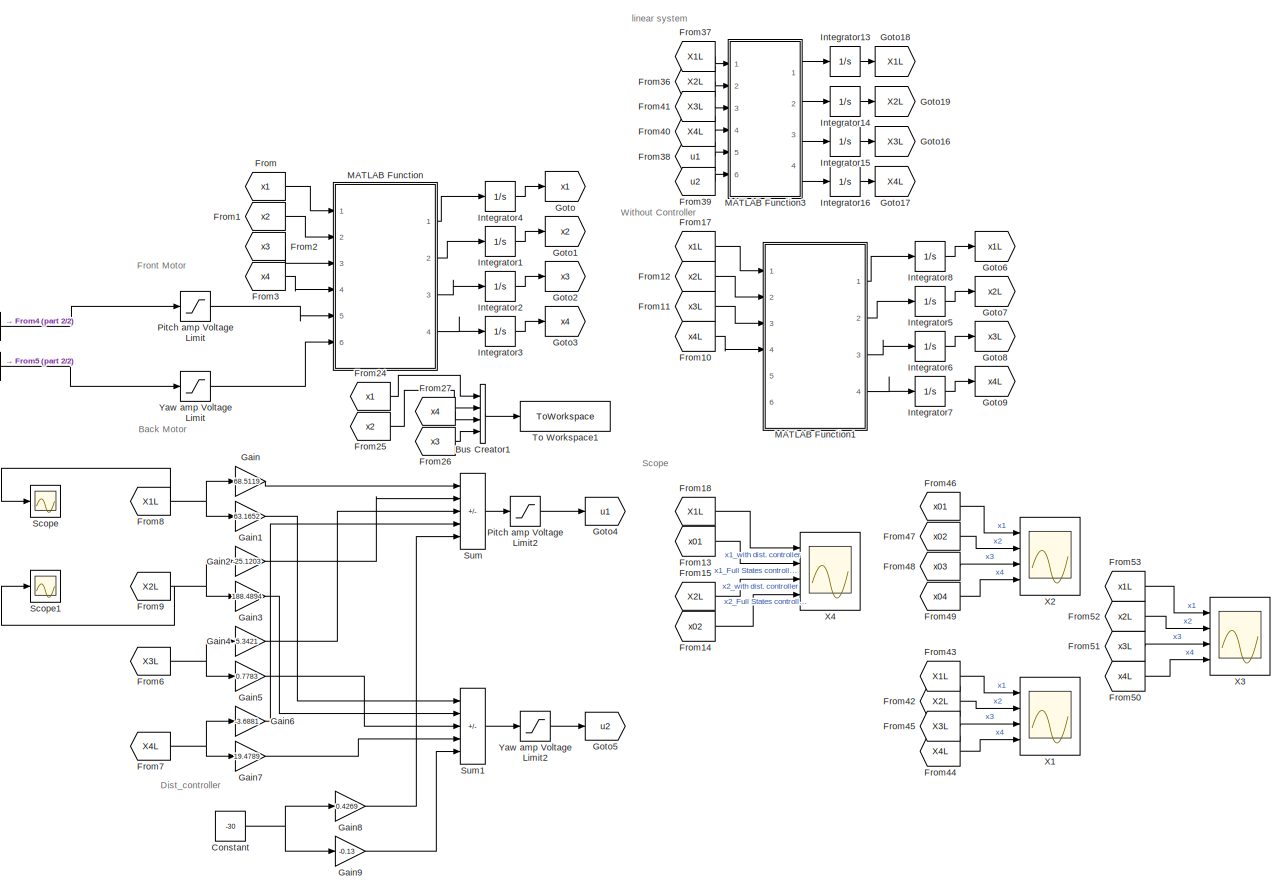
[diagram: root canvas - part 1/2, right side, full height]
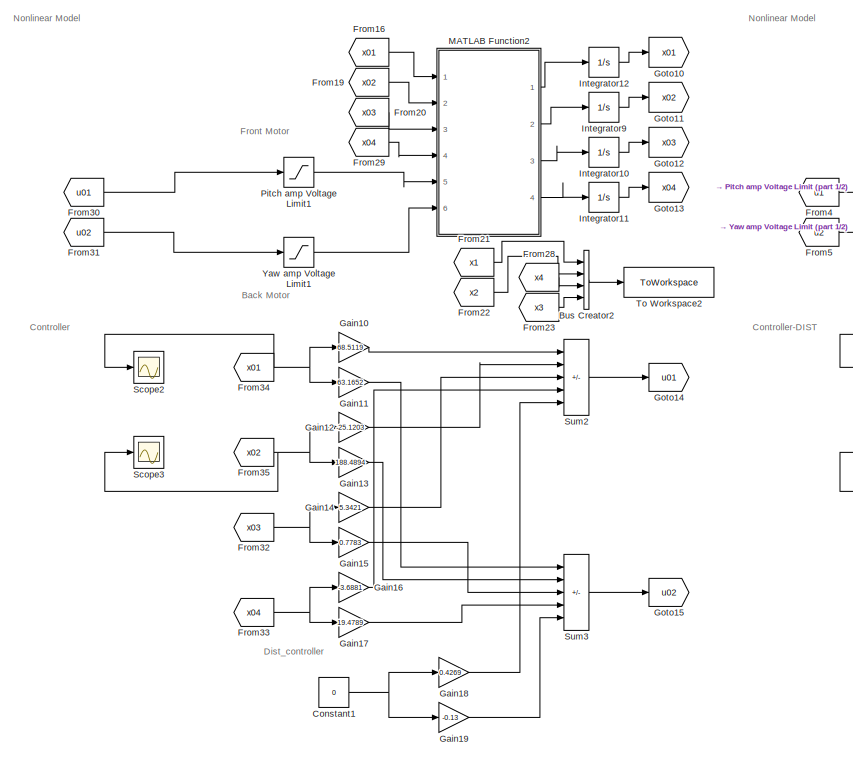
[diagram: root canvas - part 2/2, left side, full height]
MODEL slx_9ab05a108548
KIND model
CONFIG AbsTol = auto
CONFIG EnableMultiTasking = off
CONFIG FixedStep = auto
CONFIG InitFcn = % NOTE: If using VoltPAQ-X1, make sure both Gain switches are set to 3.\nK_AMP = 3;\n% Maximum Output Voltage (V): YAW limited to 15 V. PITCH limited to 24 V.\nVMAX_AMP_P = 24;\nVMAX_AMP_Y = 15;\n% Initial Angle of Pitch (rad)\ntheta_0 = -40.5*pi/180;\n\ng = 9.81;\n\n% Pitch and Yaw Motor Armature Resistance (Ohm)\nR_m_p = 0.83;\nR_m_y = 1.60;\n\n% Pitch and Yaw Motor Current-Torque Constant (N.m/A)\nK_t_p = 0.0...<+2432ch>
CONFIG MaxStep = 1e-3
CONFIG MinStep = auto
CONFIG RelTol = 1e-3
CONFIG SampleTimeConstraint = Unconstrained
CONFIG Solver = VariableStepAuto
CONFIG SolverName = VariableStepAuto
CONFIG StartTime = 0.0
CONFIG StopTime = 30
BLOCK [BusCreator] Bus Creator1
  DisplayOption = bar
  InheritFromInputs = on
  Inputs = 4
  Ports = [4, 1]
BLOCK [BusCreator] Bus Creator2
  DisplayOption = bar
  InheritFromInputs = on
  Inputs = 4
  Ports = [4, 1]
BLOCK [Constant] Constant
  Value = -30
BLOCK [Constant] Constant1
  Value = 0
BLOCK [From] From
  GotoTag = x1
BLOCK [From] From1
  GotoTag = x2
BLOCK [From] From10
  GotoTag = x4L
BLOCK [From] From11
  GotoTag = x3L
BLOCK [From] From12
  GotoTag = x2L
BLOCK [From] From13
  GotoTag = x01
BLOCK [From] From14
  GotoTag = x02
BLOCK [From] From15
  GotoTag = X2L
BLOCK [From] From16
  GotoTag = x01
BLOCK [From] From17
  GotoTag = x1L
BLOCK [From] From18
  GotoTag = X1L
BLOCK [From] From19
  GotoTag = x02
BLOCK [From] From2
  GotoTag = x3
BLOCK [From] From20
  GotoTag = x03
BLOCK [From] From21
  GotoTag = x1
BLOCK [From] From22
  GotoTag = x2
BLOCK [From] From23
  GotoTag = x3
BLOCK [From] From24
  GotoTag = x1
BLOCK [From] From25
  GotoTag = x2
BLOCK [From] From26
  GotoTag = x3
BLOCK [From] From27
  GotoTag = x4
BLOCK [From] From28
  GotoTag = x4
BLOCK [From] From29
  GotoTag = x04
BLOCK [From] From3
  GotoTag = x4
BLOCK [From] From30
  GotoTag = u01
BLOCK [From] From31
  GotoTag = u02
BLOCK [From] From32
  GotoTag = x03
BLOCK [From] From33
  GotoTag = x04
BLOCK [From] From34
  GotoTag = x01
BLOCK [From] From35
  GotoTag = x02
BLOCK [From] From36
  GotoTag = X2L
BLOCK [From] From37
  GotoTag = X1L
BLOCK [From] From38
  GotoTag = u1
BLOCK [From] From39
  GotoTag = u2
BLOCK [From] From4
  GotoTag = u1
BLOCK [From] From40
  GotoTag = X4L
BLOCK [From] From41
  GotoTag = X3L
BLOCK [From] From42
  GotoTag = X2L
BLOCK [From] From43
  GotoTag = X1L
BLOCK [From] From44
  GotoTag = X4L
BLOCK [From] From45
  GotoTag = X3L
BLOCK [From] From46
  GotoTag = x01
BLOCK [From] From47
  GotoTag = x02
BLOCK [From] From48
  GotoTag = x03
BLOCK [From] From49
  GotoTag = x04
BLOCK [From] From5
  GotoTag = u2
BLOCK [From] From50
  GotoTag = x4L
BLOCK [From] From51
  GotoTag = x3L
BLOCK [From] From52
  GotoTag = x2L
BLOCK [From] From53
  GotoTag = x1L
BLOCK [From] From6
  GotoTag = X3L
BLOCK [From] From7
  GotoTag = X4L
BLOCK [From] From8
  GotoTag = X1L
BLOCK [From] From9
  GotoTag = X2L
BLOCK [Gain] Gain
  Gain = 68.5119
BLOCK [Gain] Gain1
  Gain = 63.1652
BLOCK [Gain] Gain10
  Gain = 68.5119
BLOCK [Gain] Gain11
  Gain = 63.1652
BLOCK [Gain] Gain12
  Gain = -25.1203
BLOCK [Gain] Gain13
  Gain = 188.4894
BLOCK [Gain] Gain14
  Gain = 5.3421
BLOCK [Gain] Gain15
  Gain = 0.7783
BLOCK [Gain] Gain16
  Gain = -3.6881
BLOCK [Gain] Gain17
  Gain = 19.4789
BLOCK [Gain] Gain18
  Gain = 0.4269
BLOCK [Gain] Gain19
  Gain = -0.13
BLOCK [Gain] Gain2
  Gain = -25.1203
BLOCK [Gain] Gain3
  Gain = 188.4894
BLOCK [Gain] Gain4
  Gain = 5.3421
BLOCK [Gain] Gain5
  Gain = 0.7783
BLOCK [Gain] Gain6
  Gain = -3.6881
BLOCK [Gain] Gain7
  Gain = 19.4789
BLOCK [Gain] Gain8
  Gain = 0.4269
BLOCK [Gain] Gain9
  Gain = -0.13
BLOCK [Goto] Goto
  GotoTag = x1
BLOCK [Goto] Goto1
  GotoTag = x2
BLOCK [Goto] Goto10
  GotoTag = x01
BLOCK [Goto] Goto11
  GotoTag = x02
BLOCK [Goto] Goto12
  GotoTag = x03
BLOCK [Goto] Goto13
  GotoTag = x04
BLOCK [Goto] Goto14
  GotoTag = u01
BLOCK [Goto] Goto15
  GotoTag = u02
BLOCK [Goto] Goto16
  GotoTag = X3L
BLOCK [Goto] Goto17
  GotoTag = X4L
BLOCK [Goto] Goto18
  GotoTag = X1L
BLOCK [Goto] Goto19
  GotoTag = X2L
BLOCK [Goto] Goto2
  GotoTag = x3
BLOCK [Goto] Goto3
  GotoTag = x4
BLOCK [Goto] Goto4
  GotoTag = u1
BLOCK [Goto] Goto5
  GotoTag = u2
BLOCK [Goto] Goto6
  GotoTag = x1L
BLOCK [Goto] Goto7
  GotoTag = x2L
BLOCK [Goto] Goto8
  GotoTag = x3L
BLOCK [Goto] Goto9
  GotoTag = x4L
BLOCK [Integrator] Integrator1
  Ports = [1, 1]
BLOCK [Integrator] Integrator10
  InitialCondition = 5
  Ports = [1, 1]
BLOCK [Integrator] Integrator11
  Ports = [1, 1]
BLOCK [Integrator] Integrator12
  LowerSaturationLimit = -40.5*pi/180
  Ports = [1, 1]
  UpperSaturationLimit = 40.5*pi/180
BLOCK [Integrator] Integrator13
  LowerSaturationLimit = -40.5*pi/180
  Ports = [1, 1]
  UpperSaturationLimit = 40.5*pi/180
BLOCK [Integrator] Integrator14
  Ports = [1, 1]
BLOCK [Integrator] Integrator15
  InitialCondition = 5
  Ports = [1, 1]
BLOCK [Integrator] Integrator16
  Ports = [1, 1]
BLOCK [Integrator] Integrator2
  Ports = [1, 1]
BLOCK [Integrator] Integrator3
  Ports = [1, 1]
BLOCK [Integrator] Integrator4
  LowerSaturationLimit = -40.5*pi/180
  Ports = [1, 1]
  UpperSaturationLimit = 40.5*pi/180
BLOCK [Integrator] Integrator5
  Ports = [1, 1]
BLOCK [Integrator] Integrator6
  InitialCondition = 5
  Ports = [1, 1]
BLOCK [Integrator] Integrator7
  Ports = [1, 1]
BLOCK [Integrator] Integrator8
  LowerSaturationLimit = -40.5*pi/180
  Ports = [1, 1]
  UpperSaturationLimit = 40.5*pi/180
BLOCK [Integrator] Integrator9
  Ports = [1, 1]
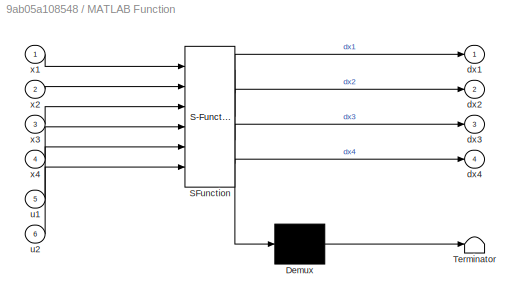
BLOCK [SubSystem] MATLAB Function
  ErrorFcn = Stateflow.Translate.translate
  PermitHierarchicalResolution = ExplicitOnly
  Ports = [6, 4]
  RequestExecContextInheritance = off
  SFBlockType = MATLAB Function
  TreatAsAtomicUnit = on
BLOCK [Demux] MATLAB Function/ Demux 
  Outputs = 1
  Ports = [1, 1]
BLOCK [S-Function] MATLAB Function/ SFunction 
  EnableBusSupport = on
  FunctionName = sf_sfun
  PortCounts = [6 5]
  Ports = [6, 5]
  SFcnIsStateOwnerBlock = off
  SFunctionDeploymentMode = off
  Tag = Stateflow S-Function controller_dist_def_controller 18
BLOCK [Terminator] MATLAB Function/ Terminator 
BLOCK [Outport] MATLAB Function/dx1
BLOCK [Outport] MATLAB Function/dx2
  Port = 2
BLOCK [Outport] MATLAB Function/dx3
  Port = 3
BLOCK [Outport] MATLAB Function/dx4
  Port = 4
BLOCK [Inport] MATLAB Function/u1
  Port = 5
BLOCK [Inport] MATLAB Function/u2
  Port = 6
BLOCK [Inport] MATLAB Function/x1
BLOCK [Inport] MATLAB Function/x2
  Port = 2
BLOCK [Inport] MATLAB Function/x3
  Port = 3
BLOCK [Inport] MATLAB Function/x4
  Port = 4
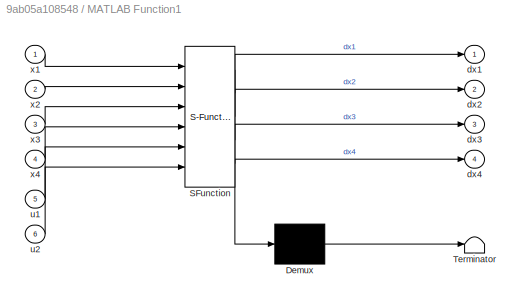
BLOCK [SubSystem] MATLAB Function1
  ErrorFcn = Stateflow.Translate.translate
  PermitHierarchicalResolution = ExplicitOnly
  Ports = [6, 4]
  RequestExecContextInheritance = off
  SFBlockType = MATLAB Function
  TreatAsAtomicUnit = on
BLOCK [Demux] MATLAB Function1/ Demux 
  Outputs = 1
  Ports = [1, 1]
BLOCK [S-Function] MATLAB Function1/ SFunction 
  EnableBusSupport = on
  FunctionName = sf_sfun
  PortCounts = [6 5]
  Ports = [6, 5]
  SFcnIsStateOwnerBlock = off
  SFunctionDeploymentMode = off
  Tag = Stateflow S-Function controller_dist_def_controller 1
BLOCK [Terminator] MATLAB Function1/ Terminator 
BLOCK [Outport] MATLAB Function1/dx1
BLOCK [Outport] MATLAB Function1/dx2
  Port = 2
BLOCK [Outport] MATLAB Function1/dx3
  Port = 3
BLOCK [Outport] MATLAB Function1/dx4
  Port = 4
BLOCK [Inport] MATLAB Function1/u1
  Port = 5
BLOCK [Inport] MATLAB Function1/u2
  Port = 6
BLOCK [Inport] MATLAB Function1/x1
BLOCK [Inport] MATLAB Function1/x2
  Port = 2
BLOCK [Inport] MATLAB Function1/x3
  Port = 3
BLOCK [Inport] MATLAB Function1/x4
  Port = 4
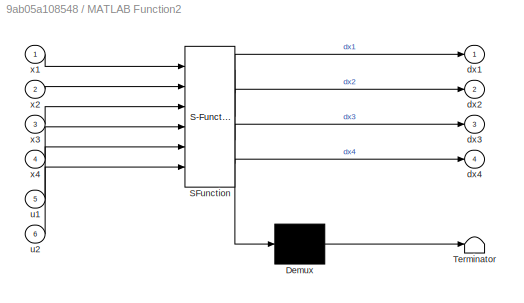
BLOCK [SubSystem] MATLAB Function2
  ErrorFcn = Stateflow.Translate.translate
  PermitHierarchicalResolution = ExplicitOnly
  Ports = [6, 4]
  RequestExecContextInheritance = off
  SFBlockType = MATLAB Function
  TreatAsAtomicUnit = on
BLOCK [Demux] MATLAB Function2/ Demux 
  Outputs = 1
  Ports = [1, 1]
BLOCK [S-Function] MATLAB Function2/ SFunction 
  EnableBusSupport = on
  FunctionName = sf_sfun
  PortCounts = [6 5]
  Ports = [6, 5]
  SFcnIsStateOwnerBlock = off
  SFunctionDeploymentMode = off
  Tag = Stateflow S-Function controller_dist_def_controller 2
BLOCK [Terminator] MATLAB Function2/ Terminator 
BLOCK [Outport] MATLAB Function2/dx1
BLOCK [Outport] MATLAB Function2/dx2
  Port = 2
BLOCK [Outport] MATLAB Function2/dx3
  Port = 3
BLOCK [Outport] MATLAB Function2/dx4
  Port = 4
BLOCK [Inport] MATLAB Function2/u1
  Port = 5
BLOCK [Inport] MATLAB Function2/u2
  Port = 6
BLOCK [Inport] MATLAB Function2/x1
BLOCK [Inport] MATLAB Function2/x2
  Port = 2
BLOCK [Inport] MATLAB Function2/x3
  Port = 3
BLOCK [Inport] MATLAB Function2/x4
  Port = 4
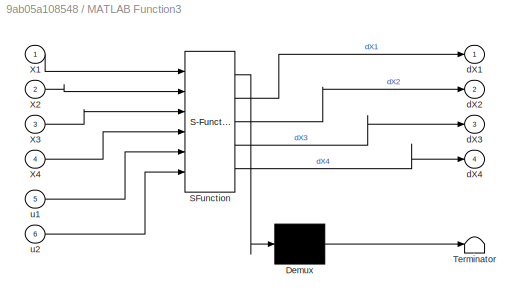
BLOCK [SubSystem] MATLAB Function3
  ErrorFcn = Stateflow.Translate.translate
  PermitHierarchicalResolution = ExplicitOnly
  Ports = [6, 4]
  RequestExecContextInheritance = off
  SFBlockType = MATLAB Function
  TreatAsAtomicUnit = on
BLOCK [Demux] MATLAB Function3/ Demux 
  Outputs = 1
  Ports = [1, 1]
BLOCK [S-Function] MATLAB Function3/ SFunction 
  EnableBusSupport = on
  FunctionName = sf_sfun
  PortCounts = [6 5]
  Ports = [6, 5]
  SFcnIsStateOwnerBlock = off
  SFunctionDeploymentMode = off
  Tag = Stateflow S-Function controller_dist_def_controller 3
BLOCK [Terminator] MATLAB Function3/ Terminator 
BLOCK [Inport] MATLAB Function3/X1
BLOCK [Inport] MATLAB Function3/X2
  Port = 2
BLOCK [Inport] MATLAB Function3/X3
  Port = 3
BLOCK [Inport] MATLAB Function3/X4
  Port = 4
BLOCK [Outport] MATLAB Function3/dX1
BLOCK [Outport] MATLAB Function3/dX2
  Port = 2
BLOCK [Outport] MATLAB Function3/dX3
  Port = 3
BLOCK [Outport] MATLAB Function3/dX4
  Port = 4
BLOCK [Inport] MATLAB Function3/u1
  Port = 5
BLOCK [Inport] MATLAB Function3/u2
  Port = 6
BLOCK [Saturate] Pitch amp Voltage Limit
  LowerLimit = - VMAX_AMP_P
  UpperLimit = VMAX_AMP_P
BLOCK [Saturate] Pitch amp Voltage Limit1
  LowerLimit = - VMAX_AMP_P
  UpperLimit = VMAX_AMP_P
BLOCK [Saturate] Pitch amp Voltage Limit2
  LowerLimit = - VMAX_AMP_P
  UpperLimit = VMAX_AMP_P
BLOCK [Scope] Scope
  Floating = off
  NumInputPorts = 1
  Ports = [1]
  ScopeSpecificationString = Simulink.scopes.TimeScopeBlockCfg('CurrentConfiguration', extmgr.ConfigurationSet(extmgr.Configuration('Core','General UI',true),extmgr.Configuration('Core','Source UI',true),extmgr.Configuration('Sources','WiredSimulink',true),extmgr.Configuration('Visuals','Time Domain',true,'SerializedDisplays',{struct('MinYLimReal','-0.51971','MaxYLimReal','0.05775','YLabelReal','','MinYLimMag','0.00000','MaxY...<+1331ch>
BLOCK [Scope] Scope1
  Floating = off
  NumInputPorts = 1
  Ports = [1]
  ScopeSpecificationString = Simulink.scopes.TimeScopeBlockCfg('CurrentConfiguration', extmgr.ConfigurationSet(extmgr.Configuration('Core','General UI',true),extmgr.Configuration('Core','Source UI',true),extmgr.Configuration('Sources','WiredSimulink',true,'DataLoggingVariableName','ScopeData1'),extmgr.Configuration('Visuals','Time Domain',true,'SerializedDisplays',{struct('MinYLimReal','-0.09182','MaxYLimReal','2.23242','YLab...<+1370ch>
BLOCK [Scope] Scope2
  Floating = off
  NumInputPorts = 1
  Ports = [1]
  ScopeSpecificationString = Simulink.scopes.TimeScopeBlockCfg('CurrentConfiguration', extmgr.ConfigurationSet(extmgr.Configuration('Core','General UI',true),extmgr.Configuration('Core','Source UI',true),extmgr.Configuration('Sources','WiredSimulink',true,'DataLoggingVariableName','ScopeData1'),extmgr.Configuration('Visuals','Time Domain',true,'SerializedDisplays',{struct('MinYLimReal','-0.51971','MaxYLimReal','0.05775','YLab...<+1370ch>
BLOCK [Scope] Scope3
  Floating = off
  NumInputPorts = 1
  Ports = [1]
  ScopeSpecificationString = Simulink.scopes.TimeScopeBlockCfg('CurrentConfiguration', extmgr.ConfigurationSet(extmgr.Configuration('Core','General UI',true),extmgr.Configuration('Core','Source UI',true),extmgr.Configuration('Sources','WiredSimulink',true,'DataLoggingVariableName','ScopeData3'),extmgr.Configuration('Visuals','Time Domain',true,'SerializedDisplays',{struct('MinYLimReal','-0.09182','MaxYLimReal','2.23242','YLab...<+1370ch>
BLOCK [Sum] Sum
  IconShape = rectangular
  Inputs = -----
  Ports = [5, 1]
BLOCK [Sum] Sum1
  IconShape = rectangular
  Inputs = -----
  Ports = [5, 1]
BLOCK [Sum] Sum2
  IconShape = rectangular
  Inputs = -----
  Ports = [5, 1]
BLOCK [Sum] Sum3
  IconShape = rectangular
  Inputs = -----
  Ports = [5, 1]
BLOCK [ToWorkspace] To Workspace1
  FixptAsFi = on
  MaxDataPoints = inf
  Ports = [1]
  SampleTime = -1
  VariableName = NonLinear
BLOCK [ToWorkspace] To Workspace2
  FixptAsFi = on
  MaxDataPoints = inf
  Ports = [1]
  SampleTime = -1
  VariableName = NonLinear1
BLOCK [Scope] X1
  Floating = off
  NumInputPorts = 4
  Ports = [4]
  ScopeSpecificationString = Simulink.scopes.TimeScopeBlockCfg('CurrentConfiguration', extmgr.ConfigurationSet(extmgr.Configuration('Core','General UI',true,'FigureColor',[1 1 1]),extmgr.Configuration('Core','Source UI',true),extmgr.Configuration('Sources','WiredSimulink',true,'DataLoggingVariableName','ScopeData4'),extmgr.Configuration('Visuals','Time Domain',true,'SerializedDisplays',{struct('MinYLimReal','-1.67369','MaxYLi...<+2365ch>
BLOCK [Scope] X2
  Floating = off
  NumInputPorts = 4
  Ports = [4]
  ScopeSpecificationString = Simulink.scopes.TimeScopeBlockCfg('CurrentConfiguration', extmgr.ConfigurationSet(extmgr.Configuration('Core','General UI',true,'FigureColor',[1 1 1]),extmgr.Configuration('Core','Source UI',true),extmgr.Configuration('Sources','WiredSimulink',true,'DataLoggingVariableName','ScopeData5'),extmgr.Configuration('Visuals','Time Domain',true,'SerializedDisplays',{struct('MinYLimReal','-3.30913','MaxYLi...<+2365ch>
BLOCK [Scope] X3
  Floating = off
  NumInputPorts = 4
  Ports = [4]
  ScopeSpecificationString = Simulink.scopes.TimeScopeBlockCfg('CurrentConfiguration', extmgr.ConfigurationSet(extmgr.Configuration('Core','General UI',true,'FigureColor',[1 1 1]),extmgr.Configuration('Core','Source UI',true),extmgr.Configuration('Sources','WiredSimulink',true,'DataLoggingVariableName','ScopeData6'),extmgr.Configuration('Visuals','Time Domain',true,'SerializedDisplays',{struct('MinYLimReal','-25.33628','MaxYL...<+2367ch>
BLOCK [Scope] X4
  Floating = off
  NumInputPorts = 4
  Ports = [4]
  ScopeSpecificationString = Simulink.scopes.TimeScopeBlockCfg('CurrentConfiguration', extmgr.ConfigurationSet(extmgr.Configuration('Core','General UI',true,'FigureColor',[1 1 1]),extmgr.Configuration('Core','Source UI',true),extmgr.Configuration('Sources','WiredSimulink',true,'DataLoggingVariableName','ScopeData2'),extmgr.Configuration('Visuals','Time Domain',true,'SerializedDisplays',{struct('MinYLimReal','-0.54391','MaxYLi...<+2455ch>
BLOCK [Saturate] Yaw amp Voltage Limit
  LowerLimit = - VMAX_AMP_Y
  UpperLimit = VMAX_AMP_Y
BLOCK [Saturate] Yaw amp Voltage Limit1
  LowerLimit = - VMAX_AMP_Y
  UpperLimit = VMAX_AMP_Y
BLOCK [Saturate] Yaw amp Voltage Limit2
  LowerLimit = - VMAX_AMP_Y
  UpperLimit = VMAX_AMP_Y
ANNOTATION (root): Back Motor
ANNOTATION (root): Controller
ANNOTATION (root): Controller-DIST
ANNOTATION (root): Dist_controller
ANNOTATION (root): Front Motor
ANNOTATION (root): Nonlinear Model
ANNOTATION (root): Scope
ANNOTATION (root): Without Controller
ANNOTATION (root): linear system
LINE Bus Creator1:1 -> To Workspace1:1
LINE Bus Creator2:1 -> To Workspace2:1
NET Constant1:1 -> Gain18:1, Gain19:1
NET Constant:1 -> Gain8:1, Gain9:1
LINE From10:1 -> MATLAB Function1:4
LINE From11:1 -> MATLAB Function1:3
LINE From12:1 -> MATLAB Function1:2
LINE From13:1 -> X4:2
LINE From14:1 -> X4:4
LINE From15:1 -> X4:3
LINE From16:1 -> MATLAB Function2:1
LINE From17:1 -> MATLAB Function1:1
LINE From18:1 -> X4:1
LINE From19:1 -> MATLAB Function2:2
LINE From1:1 -> MATLAB Function:2
LINE From20:1 -> MATLAB Function2:3
LINE From21:1 -> Bus Creator2:1
LINE From22:1 -> Bus Creator2:2
LINE From23:1 -> Bus Creator2:4
LINE From24:1 -> Bus Creator1:1
LINE From25:1 -> Bus Creator1:2
LINE From26:1 -> Bus Creator1:4
LINE From27:1 -> Bus Creator1:3
LINE From28:1 -> Bus Creator2:3
LINE From29:1 -> MATLAB Function2:4
LINE From2:1 -> MATLAB Function:3
LINE From30:1 -> Pitch amp Voltage Limit1:1
LINE From31:1 -> Yaw amp Voltage Limit1:1
NET From32:1 -> Gain14:1, Gain15:1
NET From33:1 -> Gain16:1, Gain17:1
NET From34:1 -> Gain10:1, Gain11:1, Scope2:1
NET From35:1 -> Gain12:1, Gain13:1, Scope3:1
LINE From36:1 -> MATLAB Function3:2
LINE From37:1 -> MATLAB Function3:1
LINE From38:1 -> MATLAB Function3:5
LINE From39:1 -> MATLAB Function3:6
LINE From3:1 -> MATLAB Function:4
LINE From40:1 -> MATLAB Function3:4
LINE From41:1 -> MATLAB Function3:3
LINE From42:1 -> X1:2
LINE From43:1 -> X1:1
LINE From44:1 -> X1:4
LINE From45:1 -> X1:3
LINE From46:1 -> X2:1
LINE From47:1 -> X2:2
LINE From48:1 -> X2:3
LINE From49:1 -> X2:4
LINE From4:1 -> Pitch amp Voltage Limit:1
LINE From50:1 -> X3:4
LINE From51:1 -> X3:3
LINE From52:1 -> X3:2
LINE From53:1 -> X3:1
LINE From5:1 -> Yaw amp Voltage Limit:1
NET From6:1 -> Gain4:1, Gain5:1
NET From7:1 -> Gain6:1, Gain7:1
NET From8:1 -> Gain1:1, Gain:1, Scope:1
NET From9:1 -> Gain2:1, Gain3:1, Scope1:1
LINE From:1 -> MATLAB Function:1
LINE Gain10:1 -> Sum2:1
LINE Gain11:1 -> Sum3:1
LINE Gain12:1 -> Sum2:2
LINE Gain13:1 -> Sum3:2
LINE Gain14:1 -> Sum2:3
LINE Gain15:1 -> Sum3:3
LINE Gain16:1 -> Sum2:4
LINE Gain17:1 -> Sum3:4
LINE Gain18:1 -> Sum2:5
LINE Gain19:1 -> Sum3:5
LINE Gain1:1 -> Sum1:1
LINE Gain2:1 -> Sum:2
LINE Gain3:1 -> Sum1:2
LINE Gain4:1 -> Sum:3
LINE Gain5:1 -> Sum1:3
LINE Gain6:1 -> Sum:4
LINE Gain7:1 -> Sum1:4
LINE Gain8:1 -> Sum:5
LINE Gain9:1 -> Sum1:5
LINE Gain:1 -> Sum:1
LINE Integrator10:1 -> Goto12:1
LINE Integrator11:1 -> Goto13:1
LINE Integrator12:1 -> Goto10:1
LINE Integrator13:1 -> Goto18:1
LINE Integrator14:1 -> Goto19:1
LINE Integrator15:1 -> Goto16:1
LINE Integrator16:1 -> Goto17:1
LINE Integrator1:1 -> Goto1:1
LINE Integrator2:1 -> Goto2:1
LINE Integrator3:1 -> Goto3:1
LINE Integrator4:1 -> Goto:1
LINE Integrator5:1 -> Goto7:1
LINE Integrator6:1 -> Goto8:1
LINE Integrator7:1 -> Goto9:1
LINE Integrator8:1 -> Goto6:1
LINE Integrator9:1 -> Goto11:1
LINE MATLAB Function1:1 -> Integrator8:1
LINE MATLAB Function1:2 -> Integrator5:1
LINE MATLAB Function1:3 -> Integrator6:1
LINE MATLAB Function1:4 -> Integrator7:1
LINE MATLAB Function2:1 -> Integrator12:1
LINE MATLAB Function2:2 -> Integrator9:1
LINE MATLAB Function2:3 -> Integrator10:1
LINE MATLAB Function2:4 -> Integrator11:1
LINE MATLAB Function3:1 -> Integrator13:1
LINE MATLAB Function3:2 -> Integrator14:1
LINE MATLAB Function3:3 -> Integrator15:1
LINE MATLAB Function3:4 -> Integrator16:1
LINE MATLAB Function:1 -> Integrator4:1
LINE MATLAB Function:2 -> Integrator1:1
LINE MATLAB Function:3 -> Integrator2:1
LINE MATLAB Function:4 -> Integrator3:1
LINE Pitch amp Voltage Limit1:1 -> MATLAB Function2:5
LINE Pitch amp Voltage Limit2:1 -> Goto4:1
LINE Pitch amp Voltage Limit:1 -> MATLAB Function:5
LINE Sum1:1 -> Yaw amp Voltage Limit2:1
LINE Sum2:1 -> Goto14:1
LINE Sum3:1 -> Goto15:1
LINE Sum:1 -> Pitch amp Voltage Limit2:1
LINE Yaw amp Voltage Limit1:1 -> MATLAB Function2:6
LINE Yaw amp Voltage Limit2:1 -> Goto5:1
LINE Yaw amp Voltage Limit:1 -> MATLAB Function:6
note: NET lines group one-source signal fan-out (src -> all destinations, sorted); 1:1 wires keep LINE
CHART MATLAB Function1 states=1 transitions=1
  STATE_LABEL 'eML_blk_kernel()'
  STATE_LABEL 'SCRIPT:\nfunction [dx1,dx2,dx3,dx4]= NonlinearFunc(x1,x2,x3,x4,u1,u2)\n%% Initial Conditions\n% Gravitational Constant (m/s^2)\ng = 9.81;\n\n% Pitch and Yaw Motor Armature Resistance (Ohm)\nR_m_p = 0.83;\nR_m_y = 1.60;\n\n% Pitch and Yaw Motor Current-Torque Constant (N.m/A)\nK_t_p = 0.0182;\nK_t_y = 0.0109;\n\n% Pitch and Yaw Motor Voltage-Torque Constant (N.m/V)\nK_yp = K_t_p / R_m_p;\nK_py = K_t_y / R_m_y;\n\n% ...<+2524ch>'
CHART MATLAB Function2 states=1 transitions=1
  STATE_LABEL 'eML_blk_kernel()'
  STATE_LABEL 'SCRIPT:\nfunction [dx1,dx2,dx3,dx4]= NonlinearFunc(x1,x2,x3,x4,u1,u2)\n%% Initial Conditions\n% Gravitational Constant (m/s^2)\ng = 9.81;\n\n% Pitch and Yaw Motor Armature Resistance (Ohm)\nR_m_p = 0.83;\nR_m_y = 1.60;\n\n% Pitch and Yaw Motor Current-Torque Constant (N.m/A)\nK_t_p = 0.0182;\nK_t_y = 0.0109;\n\n% Pitch and Yaw Motor Voltage-Torque Constant (N.m/V)\nK_yp = K_t_p / R_m_p;\nK_py = K_t_y / R_m_y;\n\n% ...<+2523ch>'
CHART MATLAB Function3 states=1 transitions=1
  STATE_LABEL 'eML_blk_kernel()'
  STATE_LABEL "SCRIPT:\nfunction [dX1,dX2,dX3,dX4] = Linear(X1,X2,X3,X4,u1,u2)\n%#codegen\n\nA=[      0         0    1.0000         0\n         0         0         0    1.0000\n         0         0   -9.2751         0\n         0         0         0   -3.4955];\n     \nB=[      0         0\n         0         0\n    2.3667    0.0790\n    0.2410    0.7913];\n\nX = [X1;X2;X3;X4];\nU=[u1,u2].';\ndX = A*X+B*U;\nxd=-30;\n\ndX1 = dX(1);...<+43ch>"
CHART MATLAB Function states=1 transitions=1
  STATE_LABEL 'eML_blk_kernel()'
  STATE_LABEL 'SCRIPT:\nfunction [dx1,dx2,dx3,dx4]= NonlinearFunc(x1,x2,x3,x4,u1,u2)\n%% Initial Conditions\n% Gravitational Constant (m/s^2)\ng = 9.81;\n\n% Pitch and Yaw Motor Armature Resistance (Ohm)\nR_m_p = 0.83;\nR_m_y = 1.60;\n\n% Pitch and Yaw Motor Current-Torque Constant (N.m/A)\nK_t_p = 0.0182;\nK_t_y = 0.0109;\n\n% Pitch and Yaw Motor Voltage-Torque Constant (N.m/V)\nK_yp = K_t_p / R_m_p;\nK_py = K_t_y / R_m_y;\n\n% ...<+2523ch>'
